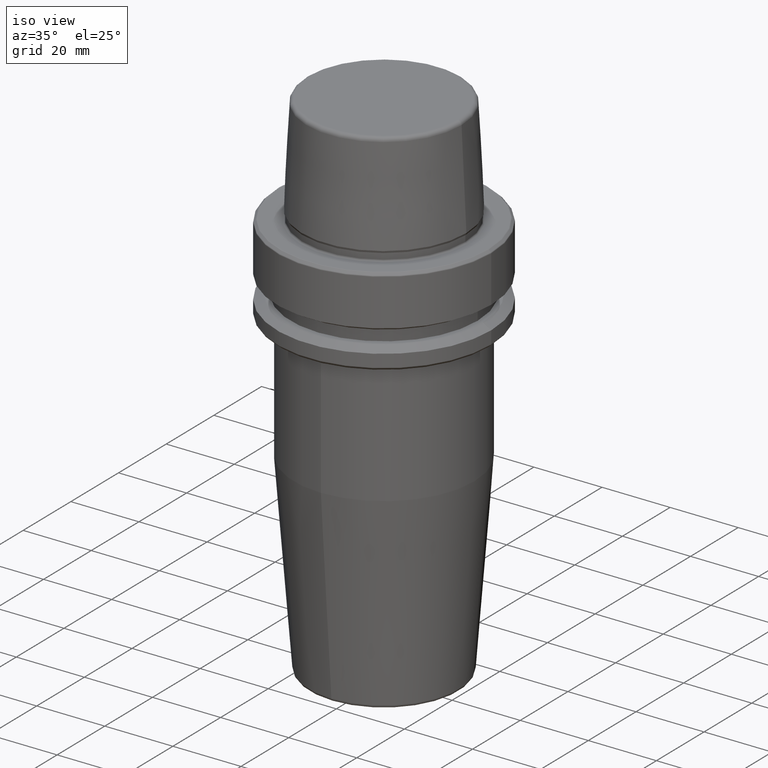
[diagram: clean part render]
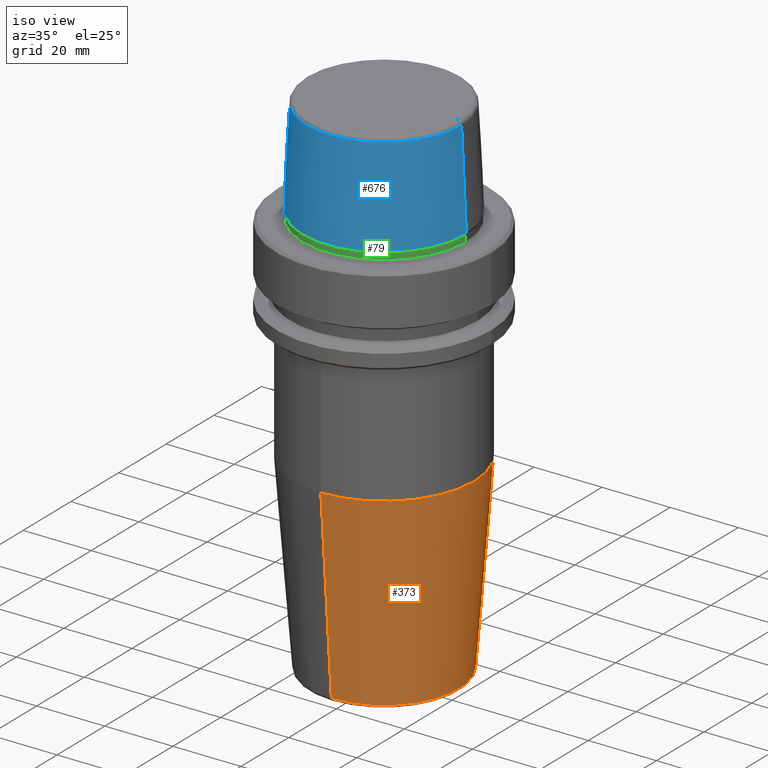
[diagram: same view with three faces highlighted in distinct colors, each labeled with its STEP entity id]
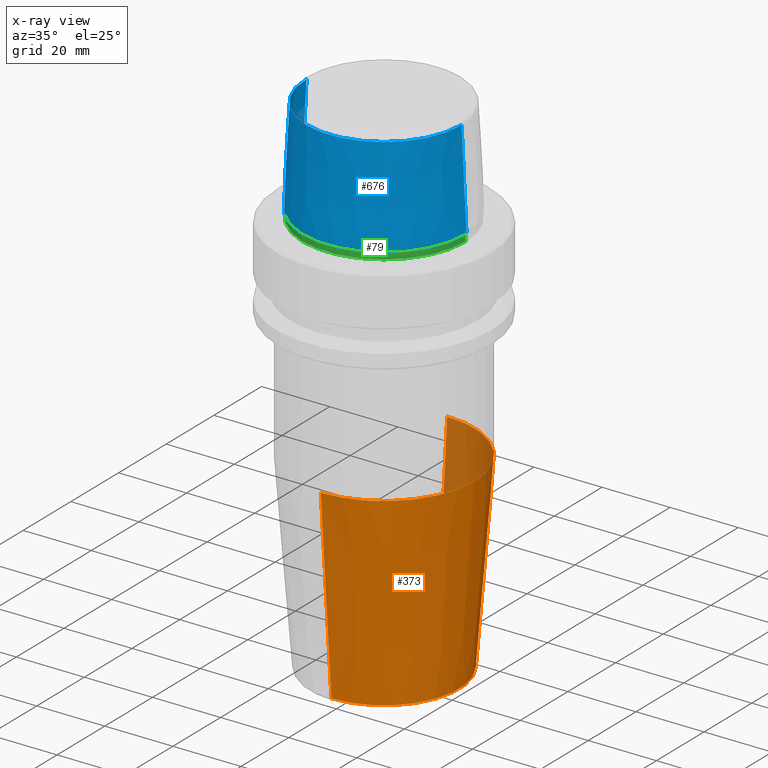
[diagram: x-ray of the same camera — body ghosted, the three highlighted faces saturated]
A machine part, iso view with three faces highlighted in distinct colors.
The next image is the same camera in x-ray (body ghosted, the three faces saturated) — at least one of them is partly hidden behind the body in this view.
Their STEP definitions:

[orange] entity #373 — the highlighted conical surface has half-angle 4.5 deg.
#14 = VERTEX_POINT ( 'NONE', #334 ) ;
#97 = VECTOR ( 'NONE', #224, 1000.000000000000100 ) ;
#107 = DIRECTION ( 'NONE',  ( 0.0000000000000000000, -0.07845909572783720000, 0.9969173337331285200 ) ) ;
#135 = EDGE_CURVE ( 'NONE', #851, #249, #932, .T. ) ;
#185 = VECTOR ( 'NONE', #107, 1000.000000000000100 ) ;
#224 = DIRECTION ( 'NONE',  ( 9.608468044709167500E-018, 0.07845909572783731100, 0.9969173337331285200 ) ) ;
#231 = EDGE_CURVE ( 'NONE', #485, #851, #1017, .T. ) ;
#241 = DIRECTION ( 'NONE',  ( 0.0000000000000000000, 5.211262975095122500E-017, 1.000000000000000000 ) ) ;
#249 = VERTEX_POINT ( 'NONE', #612 ) ;
#259 = AXIS2_PLACEMENT_3D ( 'NONE', #682, #241, #737 ) ;
#277 = EDGE_CURVE ( 'NONE', #14, #249, #1062, .T. ) ;
#290 = ORIENTED_EDGE ( 'NONE', *, *, #1205, .T. ) ;
#307 = DIRECTION ( 'NONE',  ( 0.0000000000000000000, 1.000000000000000000, 0.0000000000000000000 ) ) ;
#325 = FACE_OUTER_BOUND ( 'NONE', #416, .T. ) ;
#334 = CARTESIAN_POINT ( 'NONE',  ( 3.245314017740484600E-015, 26.49999999999998600, -62.82207868720821200 ) ) ;
#344 = ORIENTED_EDGE ( 'NONE', *, *, #231, .F. ) ;
#365 = DIRECTION ( 'NONE',  ( -0.0000000000000000000, -5.211262975095122500E-017, -1.000000000000000000 ) ) ;
#373 = ADVANCED_FACE ( 'NONE', ( #325 ), #1251, .T. ) ;
#400 = CARTESIAN_POINT ( 'NONE',  ( 0.0000000000000000000, -1.918895353286873100E-015, -62.82207868720821200 ) ) ;
#416 = EDGE_LOOP ( 'NONE', ( #344, #290, #446, #551 ) ) ;
#446 = ORIENTED_EDGE ( 'NONE', *, *, #277, .T. ) ;
#485 = VERTEX_POINT ( 'NONE', #976 ) ;
#526 = CARTESIAN_POINT ( 'NONE',  ( 3.245314017740484600E-015, 26.49999999999998600, -62.82207868720821200 ) ) ;
#551 = ORIENTED_EDGE ( 'NONE', *, *, #135, .F. ) ;
#557 = CARTESIAN_POINT ( 'NONE',  ( 2.703104934624107400E-015, -22.07252684207491100, -119.0784590957278200 ) ) ;
#568 = CARTESIAN_POINT ( 'NONE',  ( 0.0000000000000000000, -26.49999999999999300, -62.82207868720821200 ) ) ;
#573 = CARTESIAN_POINT ( 'NONE',  ( 0.0000000000000000000, -4.850563276644721200E-015, -119.0784590957278200 ) ) ;
#612 = CARTESIAN_POINT ( 'NONE',  ( 0.0000000000000000000, -26.49999999999999300, -62.82207868720821200 ) ) ;
#682 = CARTESIAN_POINT ( 'NONE',  ( 0.0000000000000000000, -1.918895353286873100E-015, -62.82207868720821200 ) ) ;
#737 = DIRECTION ( 'NONE',  ( 0.0000000000000000000, -1.000000000000000000, 0.0000000000000000000 ) ) ;
#747 = AXIS2_PLACEMENT_3D ( 'NONE', #573, #365, #1049 ) ;
#844 = LINE ( 'NONE', #526, #97 ) ;
#851 = VERTEX_POINT ( 'NONE', #557 ) ;
#932 = LINE ( 'NONE', #568, #185 ) ;
#976 = CARTESIAN_POINT ( 'NONE',  ( 0.0000000000000000000, 22.07252684207490400, -119.0784590957278200 ) ) ;
#1001 = DIRECTION ( 'NONE',  ( -0.0000000000000000000, -5.211262975095122500E-017, -1.000000000000000000 ) ) ;
#1007 = AXIS2_PLACEMENT_3D ( 'NONE', #400, #1001, #307 ) ;
#1017 = CIRCLE ( 'NONE', #747, 22.07252684207490400 ) ;
#1049 = DIRECTION ( 'NONE',  ( 0.0000000000000000000, 1.000000000000000000, 0.0000000000000000000 ) ) ;
#1062 = CIRCLE ( 'NONE', #1007, 26.49999999999998600 ) ;
#1205 = EDGE_CURVE ( 'NONE', #485, #14, #844, .T. ) ;
#1251 = CONICAL_SURFACE ( 'NONE', #259, 26.49999999999998900, 0.07853981633973712600 ) ;

[blue] entity #676 — the highlighted conical surface has half-angle 2.868 deg.
#22 = VERTEX_POINT ( 'NONE', #314 ) ;
#38 = EDGE_CURVE ( 'NONE', #900, #718, #55, .T. ) ;
#41 = CARTESIAN_POINT ( 'NONE',  ( 24.19537568275369200, 0.0000000000000000000, 2.500000000000002200 ) ) ;
#55 = CIRCLE ( 'NONE', #963, 24.19537568275369200 ) ;
#88 = CONICAL_SURFACE ( 'NONE', #825, 24.19537568275369200, 0.05005701257455997400 ) ;
#138 = EDGE_CURVE ( 'NONE', #22, #718, #339, .T. ) ;
#195 = DIRECTION ( 'NONE',  ( -0.0000000000000000000, -0.0000000000000000000, 1.000000000000000000 ) ) ;
#225 = EDGE_LOOP ( 'NONE', ( #316, #1201, #943, #874 ) ) ;
#237 = CARTESIAN_POINT ( 'NONE',  ( 0.0000000000000000000, 0.0000000000000000000, 30.76004333261571900 ) ) ;
#267 = DIRECTION ( 'NONE',  ( -1.000000000000000000, 0.0000000000000000000, 0.0000000000000000000 ) ) ;
#288 = DIRECTION ( 'NONE',  ( -0.0000000000000000000, -0.0000000000000000000, 1.000000000000000000 ) ) ;
#314 = CARTESIAN_POINT ( 'NONE',  ( 22.77957961851797100, 2.876386432489616700E-015, 30.76004333261571900 ) ) ;
#316 = ORIENTED_EDGE ( 'NONE', *, *, #138, .F. ) ;
#339 = LINE ( 'NONE', #600, #596 ) ;
#357 = CARTESIAN_POINT ( 'NONE',  ( 0.0000000000000000000, 0.0000000000000000000, 2.500000000000002200 ) ) ;
#362 = EDGE_CURVE ( 'NONE', #1219, #900, #711, .T. ) ;
#489 = AXIS2_PLACEMENT_3D ( 'NONE', #237, #195, #593 ) ;
#502 = DIRECTION ( 'NONE',  ( 1.000000000000000000, 0.0000000000000000000, 0.0000000000000000000 ) ) ;
#512 = CARTESIAN_POINT ( 'NONE',  ( -24.19537568275369200, 0.0000000000000000000, 2.500000000000002200 ) ) ;
#593 = DIRECTION ( 'NONE',  ( 1.000000000000000000, 0.0000000000000000000, 0.0000000000000000000 ) ) ;
#596 = VECTOR ( 'NONE', #782, 1000.000000000000200 ) ;
#600 = CARTESIAN_POINT ( 'NONE',  ( 24.19537568275369200, 2.963078938405201500E-015, 2.500000000000002200 ) ) ;
#657 = DIRECTION ( 'NONE',  ( 0.0000000000000000000, 0.0000000000000000000, -1.000000000000000000 ) ) ;
#675 = CARTESIAN_POINT ( 'NONE',  ( -24.19537568275369200, 2.963078938405201500E-015, 2.500000000000002200 ) ) ;
#676 = ADVANCED_FACE ( 'NONE', ( #1115 ), #88, .T. ) ;
#711 = LINE ( 'NONE', #512, #729 ) ;
#718 = VERTEX_POINT ( 'NONE', #41 ) ;
#729 = VECTOR ( 'NONE', #746, 1000.000000000000200 ) ;
#746 = DIRECTION ( 'NONE',  ( -0.05003611051310804400, 0.0000000000000000000, -0.9987474093306675200 ) ) ;
#782 = DIRECTION ( 'NONE',  ( 0.05003611051310804400, 6.127656258166099700E-018, -0.9987474093306675200 ) ) ;
#790 = EDGE_CURVE ( 'NONE', #1219, #22, #1070, .T. ) ;
#819 = CARTESIAN_POINT ( 'NONE',  ( -22.77957961851797100, 0.0000000000000000000, 30.76004333261571900 ) ) ;
#825 = AXIS2_PLACEMENT_3D ( 'NONE', #1035, #657, #267 ) ;
#874 = ORIENTED_EDGE ( 'NONE', *, *, #38, .T. ) ;
#900 = VERTEX_POINT ( 'NONE', #675 ) ;
#943 = ORIENTED_EDGE ( 'NONE', *, *, #362, .T. ) ;
#963 = AXIS2_PLACEMENT_3D ( 'NONE', #357, #288, #502 ) ;
#1035 = CARTESIAN_POINT ( 'NONE',  ( 0.0000000000000000000, 0.0000000000000000000, 2.500000000000002200 ) ) ;
#1070 = CIRCLE ( 'NONE', #489, 22.77957961851797100 ) ;
#1115 = FACE_OUTER_BOUND ( 'NONE', #225, .T. ) ;
#1201 = ORIENTED_EDGE ( 'NONE', *, *, #790, .F. ) ;
#1219 = VERTEX_POINT ( 'NONE', #819 ) ;

[green] entity #79 — the highlighted cylindrical surface (partial cylindrical patch) has radius 23.89 mm, axis along (-0, -0, 1).
#6 = VERTEX_POINT ( 'NONE', #131 ) ;
#12 = EDGE_CURVE ( 'NONE', #6, #1207, #898, .T. ) ;
#54 = ORIENTED_EDGE ( 'NONE', *, *, #1172, .F. ) ;
#60 = LINE ( 'NONE', #653, #969 ) ;
#79 = ADVANCED_FACE ( 'NONE', ( #1045 ), #215, .T. ) ;
#81 = DIRECTION ( 'NONE',  ( 1.000000000000000000, 0.0000000000000000000, 0.0000000000000000000 ) ) ;
#114 = DIRECTION ( 'NONE',  ( -0.0000000000000000000, -0.0000000000000000000, 1.000000000000000000 ) ) ;
#119 = ORIENTED_EDGE ( 'NONE', *, *, #471, .F. ) ;
#131 = CARTESIAN_POINT ( 'NONE',  ( 23.89000000000000400, 0.0000000000000000000, 0.1312552021302954000 ) ) ;
#193 = DIRECTION ( 'NONE',  ( 1.000000000000000000, 0.0000000000000000000, 0.0000000000000000000 ) ) ;
#215 = CYLINDRICAL_SURFACE ( 'NONE', #1212, 23.89000000000000100 ) ;
#276 = DIRECTION ( 'NONE',  ( -0.0000000000000000000, -0.0000000000000000000, 1.000000000000000000 ) ) ;
#326 = VERTEX_POINT ( 'NONE', #536 ) ;
#429 = CIRCLE ( 'NONE', #589, 23.89000000000000100 ) ;
#438 = ORIENTED_EDGE ( 'NONE', *, *, #12, .T. ) ;
#441 = CARTESIAN_POINT ( 'NONE',  ( 0.0000000000000000000, 0.0000000000000000000, 78.96908074195309300 ) ) ;
#461 = VECTOR ( 'NONE', #552, 1000.000000000000000 ) ;
#471 = EDGE_CURVE ( 'NONE', #1162, #1207, #429, .T. ) ;
#501 = EDGE_CURVE ( 'NONE', #326, #6, #838, .T. ) ;
#522 = EDGE_LOOP ( 'NONE', ( #54, #613, #438, #119 ) ) ;
#536 = CARTESIAN_POINT ( 'NONE',  ( -23.89000000000000400, 2.961613815265650600E-015, 0.1312552021302954000 ) ) ;
#552 = DIRECTION ( 'NONE',  ( -0.0000000000000000000, -0.0000000000000000000, 1.000000000000000000 ) ) ;
#589 = AXIS2_PLACEMENT_3D ( 'NONE', #810, #114, #619 ) ;
#613 = ORIENTED_EDGE ( 'NONE', *, *, #501, .T. ) ;
#618 = CARTESIAN_POINT ( 'NONE',  ( -23.89000000000000100, 2.944380070784114200E-015, 1.845119734979375100 ) ) ;
#619 = DIRECTION ( 'NONE',  ( 1.000000000000000000, 0.0000000000000000000, 0.0000000000000000000 ) ) ;
#622 = CARTESIAN_POINT ( 'NONE',  ( 23.89000000000000100, 0.0000000000000000000, 1.845119734979375100 ) ) ;
#653 = CARTESIAN_POINT ( 'NONE',  ( -23.89000000000000100, 2.925681203163027000E-015, 78.96908074195309300 ) ) ;
#810 = CARTESIAN_POINT ( 'NONE',  ( 0.0000000000000000000, 0.0000000000000000000, 1.845119734979375100 ) ) ;
#820 = DIRECTION ( 'NONE',  ( -0.0000000000000000000, -0.0000000000000000000, 1.000000000000000000 ) ) ;
#838 = CIRCLE ( 'NONE', #845, 23.89000000000000400 ) ;
#845 = AXIS2_PLACEMENT_3D ( 'NONE', #1097, #1156, #81 ) ;
#861 = CARTESIAN_POINT ( 'NONE',  ( 23.89000000000000100, 0.0000000000000000000, 78.96908074195309300 ) ) ;
#898 = LINE ( 'NONE', #861, #461 ) ;
#969 = VECTOR ( 'NONE', #820, 1000.000000000000000 ) ;
#1045 = FACE_OUTER_BOUND ( 'NONE', #522, .T. ) ;
#1097 = CARTESIAN_POINT ( 'NONE',  ( 0.0000000000000000000, 0.0000000000000000000, 0.1312552021302954000 ) ) ;
#1156 = DIRECTION ( 'NONE',  ( -0.0000000000000000000, -0.0000000000000000000, 1.000000000000000000 ) ) ;
#1162 = VERTEX_POINT ( 'NONE', #618 ) ;
#1172 = EDGE_CURVE ( 'NONE', #326, #1162, #60, .T. ) ;
#1207 = VERTEX_POINT ( 'NONE', #622 ) ;
#1212 = AXIS2_PLACEMENT_3D ( 'NONE', #441, #276, #193 ) ;